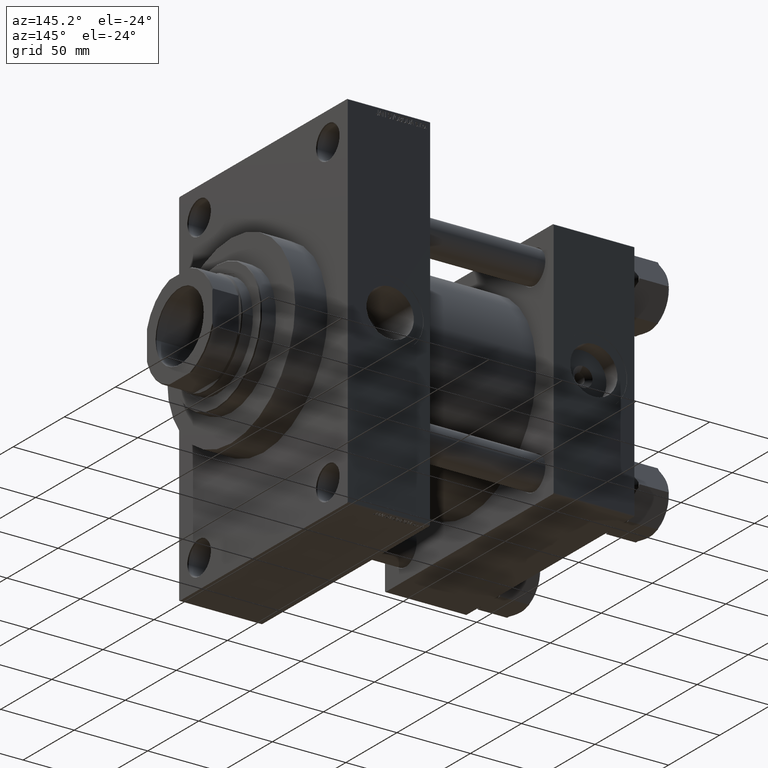
[diagram: clean part render]
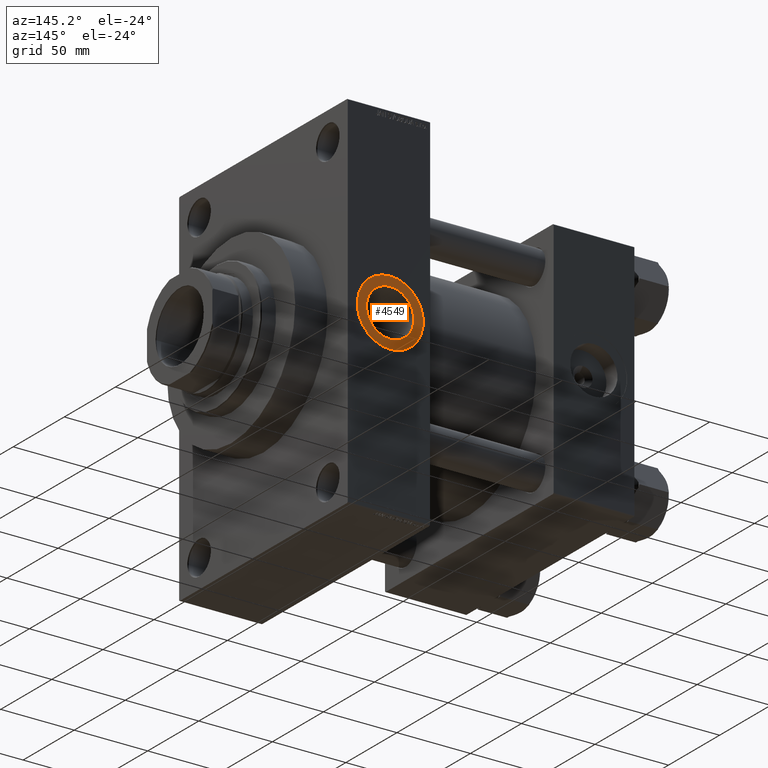
[diagram: same view with one face highlighted and labeled with its STEP entity id]
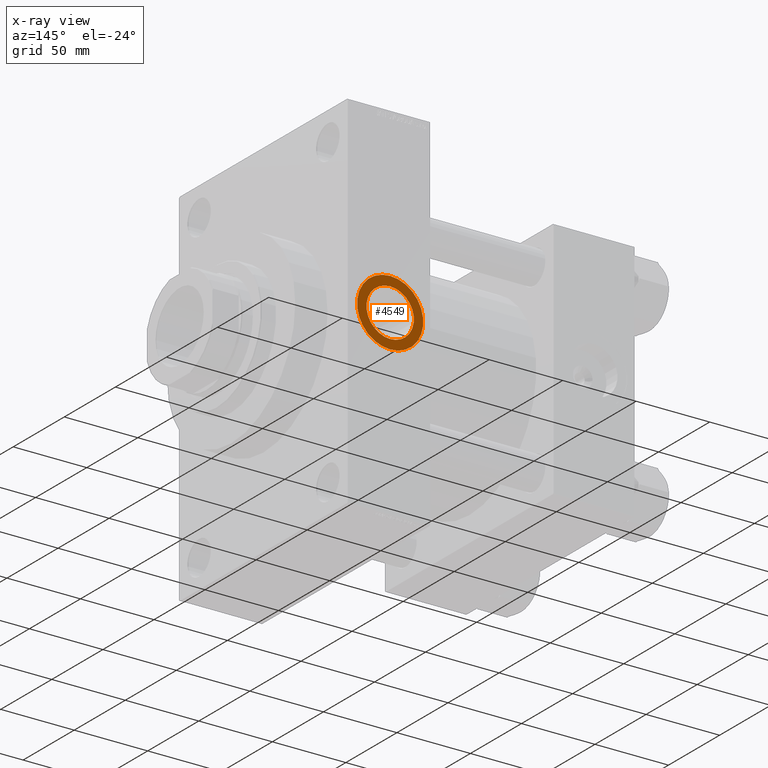
[diagram: x-ray of the same camera — body ghosted, the highlighted face saturated]
A machine part, auxiliary view. The second image highlights one B-rep face of the part: STEP entity #4549.
The next image is the same camera in x-ray: the body ghosted, the highlighted face saturated — about 0% of this face is hidden behind the body in this view.
In plain terms, the highlighted planar face has unit normal (0, 1, 0).
Its self-contained STEP definition (entity closure, byte-faithful):
#519 = CARTESIAN_POINT ( 'NONE',  ( 166.0000000000000000, 82.29999999999998295, 22.49999999999998579 ) ) ;
#3270 = EDGE_LOOP ( 'NONE', ( #30668, #20967 ) ) ;
#4549 = ADVANCED_FACE ( 'NONE', ( #23762, #23527 ), #5672, .T. ) ;
#5672 = PLANE ( 'NONE',  #39955 ) ;
#5726 = EDGE_CURVE ( 'NONE', #24868, #24692, #24551, .T. ) ;
#8337 = DIRECTION ( 'NONE',  ( 0.000000000000000000, 1.000000000000000000, 0.000000000000000000 ) ) ;
#8577 = DIRECTION ( 'NONE',  ( 0.000000000000000000, -0.000000000000000000, 1.000000000000000000 ) ) ;
#10417 = CARTESIAN_POINT ( 'NONE',  ( 166.0000000000000000, 82.29999999999998295, 4.635293498561508778E-15 ) ) ;
#11796 = CARTESIAN_POINT ( 'NONE',  ( 166.0000000000000000, 82.29999999999998295, 4.635293498561508778E-15 ) ) ;
#12029 = EDGE_CURVE ( 'NONE', #27341, #43237, #34795, .T. ) ;
#12327 = EDGE_CURVE ( 'NONE', #43237, #27341, #41741, .T. ) ;
#13649 = CARTESIAN_POINT ( 'NONE',  ( 166.0000000000000000, 82.29999999999998295, 4.635293498561508778E-15 ) ) ;
#13972 = AXIS2_PLACEMENT_3D ( 'NONE', #40886, #14596, #19403 ) ;
#14596 = DIRECTION ( 'NONE',  ( 0.000000000000000000, 1.000000000000000000, 0.000000000000000000 ) ) ;
#16839 = AXIS2_PLACEMENT_3D ( 'NONE', #10417, #42767, #39860 ) ;
#17969 = ORIENTED_EDGE ( 'NONE', *, *, #12029, .F. ) ;
#18072 = CARTESIAN_POINT ( 'NONE',  ( 166.0000000000000000, 82.29999999999998295, 16.11999999999998678 ) ) ;
#19288 = DIRECTION ( 'NONE',  ( 0.000000000000000000, 0.000000000000000000, 1.000000000000000000 ) ) ;
#19403 = DIRECTION ( 'NONE',  ( 0.000000000000000000, 0.000000000000000000, 1.000000000000000000 ) ) ;
#20274 = CARTESIAN_POINT ( 'NONE',  ( 166.0000000000000000, 82.29999999999998295, -22.49999999999997868 ) ) ;
#20897 = DIRECTION ( 'NONE',  ( 0.000000000000000000, 0.000000000000000000, 1.000000000000000000 ) ) ;
#20932 = AXIS2_PLACEMENT_3D ( 'NONE', #11796, #30873, #19288 ) ;
#20967 = ORIENTED_EDGE ( 'NONE', *, *, #5726, .T. ) ;
#22243 = CARTESIAN_POINT ( 'NONE',  ( 166.0000000000000000, 82.29999999999998295, -16.11999999999998323 ) ) ;
#23527 = FACE_OUTER_BOUND ( 'NONE', #3270, .T. ) ;
#23762 = FACE_BOUND ( 'NONE', #42345, .T. ) ;
#24551 = CIRCLE ( 'NONE', #16839, 22.49999999999998224 ) ;
#24692 = VERTEX_POINT ( 'NONE', #519 ) ;
#24868 = VERTEX_POINT ( 'NONE', #20274 ) ;
#25033 = ORIENTED_EDGE ( 'NONE', *, *, #12327, .F. ) ;
#27341 = VERTEX_POINT ( 'NONE', #22243 ) ;
#27388 = CARTESIAN_POINT ( 'NONE',  ( 166.0000000000000000, 82.29999999999998295, 4.635293498561508778E-15 ) ) ;
#28149 = DIRECTION ( 'NONE',  ( 0.000000000000000000, 1.000000000000000000, 0.000000000000000000 ) ) ;
#30668 = ORIENTED_EDGE ( 'NONE', *, *, #32218, .T. ) ;
#30873 = DIRECTION ( 'NONE',  ( 0.000000000000000000, 1.000000000000000000, 0.000000000000000000 ) ) ;
#32218 = EDGE_CURVE ( 'NONE', #24692, #24868, #41061, .T. ) ;
#34795 = CIRCLE ( 'NONE', #13972, 16.11999999999998678 ) ;
#39860 = DIRECTION ( 'NONE',  ( 0.000000000000000000, 0.000000000000000000, 1.000000000000000000 ) ) ;
#39955 = AXIS2_PLACEMENT_3D ( 'NONE', #27388, #8337, #8577 ) ;
#40886 = CARTESIAN_POINT ( 'NONE',  ( 166.0000000000000000, 82.29999999999998295, 4.635293498561508778E-15 ) ) ;
#41061 = CIRCLE ( 'NONE', #45669, 22.49999999999998224 ) ;
#41741 = CIRCLE ( 'NONE', #20932, 16.11999999999998678 ) ;
#42345 = EDGE_LOOP ( 'NONE', ( #25033, #17969 ) ) ;
#42767 = DIRECTION ( 'NONE',  ( 0.000000000000000000, 1.000000000000000000, 0.000000000000000000 ) ) ;
#43237 = VERTEX_POINT ( 'NONE', #18072 ) ;
#45669 = AXIS2_PLACEMENT_3D ( 'NONE', #13649, #28149, #20897 ) ;